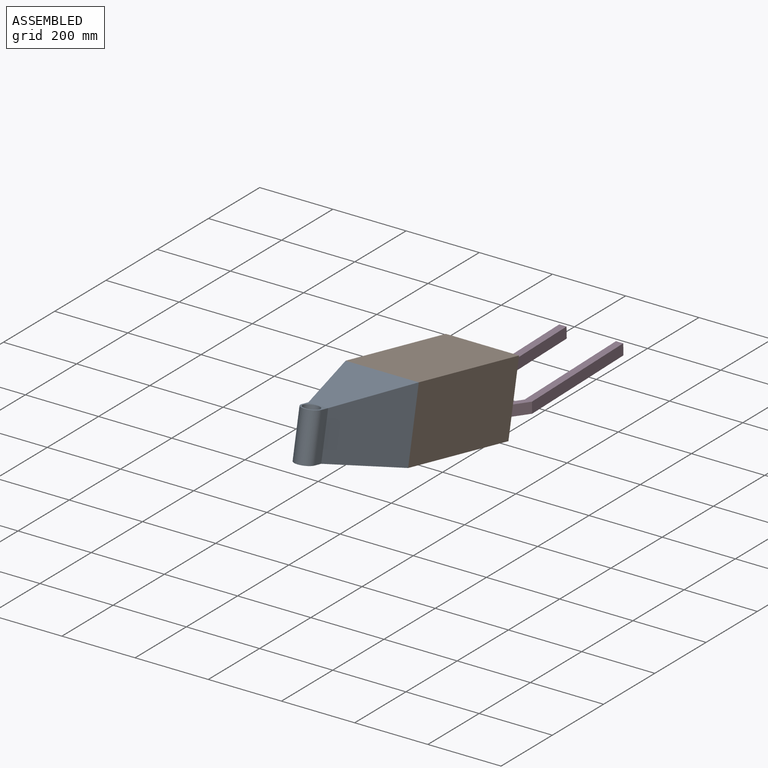
[diagram: assembled view]
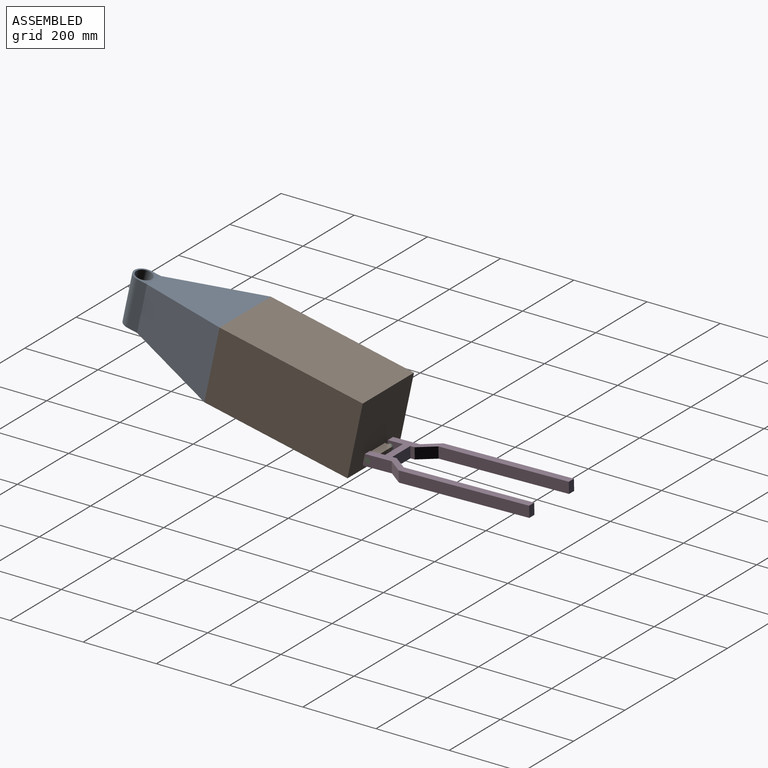
[diagram: assembled view, second angle]
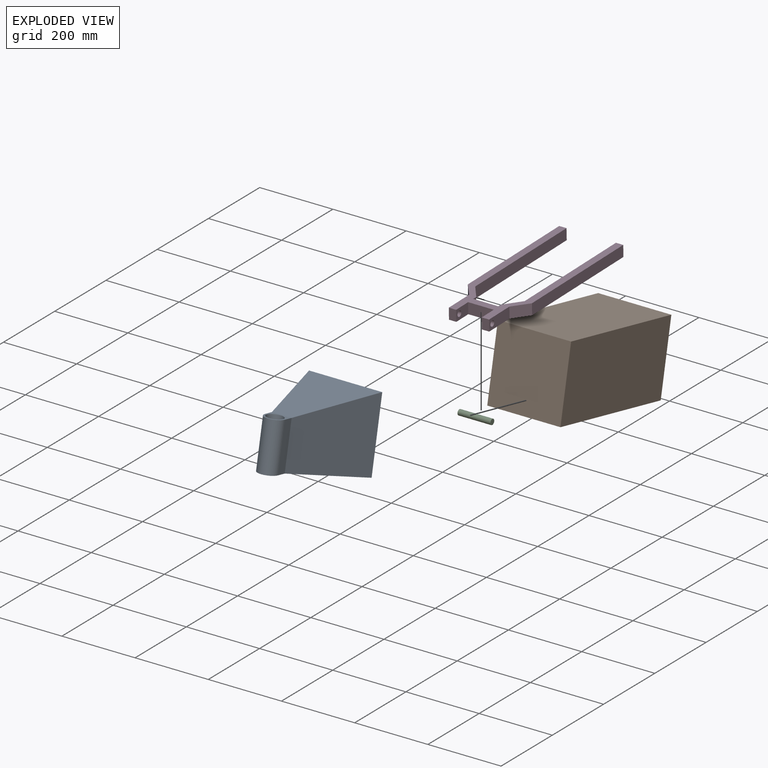
[diagram: exploded view]
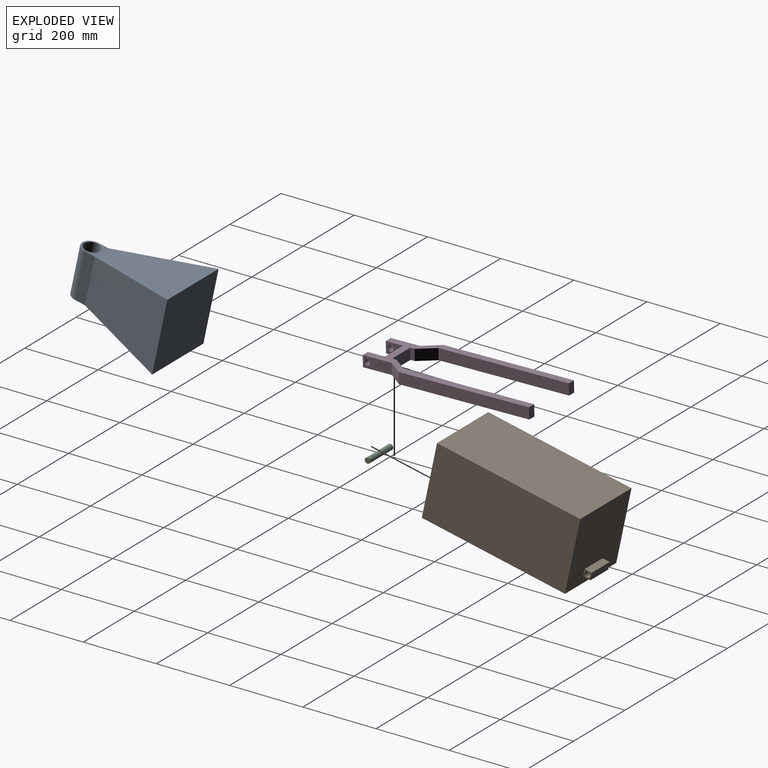
[diagram: exploded view, second angle]
ASSEMBLY  parts=4 mates=3
PART A: 11 faces, bbox 200x300.5x200 mm
  f0: cylinder r=27mm len=130mm, axis (0,0,-1), area 11027mm2, adj f1,f3,f4,f5
  f1: plane 130x27mm, normal (1,0,0), area 3510mm2, adj f0,f4,f5,f8
  f2: cylinder r=22mm len=130mm, axis (0,0,-1), area 17969.9mm2, adj f4,f5
  f3: plane 130x27mm, normal (-1,0,0), area 3510mm2, adj f0,f4,f5,f10
  f4: plane 54x54mm, normal (0,0,1), area 1082.6mm2, adj f0,f1,f2,f3,f9
  f5: plane 54x54mm, normal (0,0,-1), area 1082.6mm2, adj f0,f1,f2,f3,f7
  f6: plane 200x200mm, normal (0,1,0), area 40000mm2, adj f7,f8,f9,f10
  f7: plane 246.52x200mm, normal (0,-0.12,-0.99), area 31539.4mm2, adj f5,f6,f8,f10
  f8: plane 246.52x200mm, normal (0.96,-0.28,0), area 42422.2mm2, adj f1,f6,f7,f9
  f9: plane 246.52x200mm, normal (0,-0.16,0.99), area 31717.9mm2, adj f4,f6,f8,f10
  f10: plane 246.52x200mm, normal (-0.96,-0.28,0), area 42422.2mm2, adj f3,f6,f7,f9
PART B: 12 faces, bbox 200x420x200 mm
  f0: plane 200x200mm, normal (0,1,0), area 38600mm2, adj f1,f3,f4,f5,f6,f7,f8,f9
  f1: plane 400x200mm, normal (-1,0,0), area 80000mm2, adj f0,f2,f4,f5
  f2: plane 200x200mm, normal (0,-1,0), area 40000mm2, adj f1,f3,f4,f5
  f3: plane 400x200mm, normal (1,0,0), area 80000mm2, adj f0,f2,f4,f5
  f4: plane 400x200mm, normal (0,0,1), area 80000mm2, adj f0,f1,f2,f3
  f5: plane 400x200mm, normal (0,0,-1), area 80000mm2, adj f0,f1,f2,f3
  f6: plane 20x20mm, normal (-1,0,0), area 223.3mm2, adj f0,f7,f9,f10,f11
  f7: plane 70x20mm, normal (0,0,1), area 1400mm2, adj f0,f6,f8,f10
  f8: plane 20x20mm, normal (1,0,0), area 223.3mm2, adj f0,f7,f9,f10,f11
  f9: plane 70x20mm, normal (0,0,-1), area 1400mm2, adj f0,f6,f8,f10
  f10: plane 70x20mm, normal (0,1,0), area 1400mm2, adj f6,f7,f8,f9
  f11: cylinder r=7.5mm len=70mm, axis (1,0,0), area 3298.7mm2, adj f6,f8
PART C: 3 faces, bbox 90x15x15 mm
  f0: cylinder r=7.5mm len=90mm, axis (-1,0,0), area 4241.2mm2, adj f1,f2
  f1: plane 15x15mm, normal (1,0,0), area 176.7mm2, adj f0
  f2: plane 15x15mm, normal (-1,0,0), area 176.7mm2, adj f0
PART D: 24 faces, bbox 175x477.4x30 mm
  f0: plane 30x20mm, normal (0,1,0), area 600mm2, adj f1,f19,f20,f21
  f1: plane 356.4x30mm, normal (-1,0,0), area 10692.1mm2, adj f0,f2,f20,f21
  f2: plane 42.36x32.5mm, normal (-0.79,0.61,0), area 1601.7mm2, adj f1,f3,f20,f21
  f3: plane 30x11.79mm, normal (-1,0,0), area 353.6mm2, adj f2,f4,f20,f21
  f4: plane 70x30mm, normal (0,1,0), area 2100mm2, adj f3,f5,f20,f21
  f5: plane 30x11.79mm, normal (1,0,0), area 353.6mm2, adj f4,f6,f20,f21
  f6: plane 42.36x32.5mm, normal (0.79,0.61,0), area 1601.7mm2, adj f5,f7,f20,f21
  f7: plane 356.4x30mm, normal (1,0,0), area 10692.1mm2, adj f6,f8,f20,f21
  f8: plane 30x20mm, normal (0,1,0), area 600mm2, adj f7,f9,f20,f21
  f9: plane 356.4x30mm, normal (-1,0,0), area 10692.1mm2, adj f8,f10,f20,f21
  f10: plane 41.67x32.5mm, normal (-0.79,-0.61,0), area 1585.5mm2, adj f9,f11,f20,f21
  f11: plane 79.29x30mm, normal (-1,0,0), area 2202mm2, adj f10,f12,f20,f21,f22
  f12: plane 30x20mm, normal (0,-1,0), area 600mm2, adj f11,f13,f20,f21
  f13: plane 46.82x30mm, normal (1,0,0), area 1227.9mm2, adj f12,f14,f20,f21,f22
  f14: plane 70x30mm, normal (0,-1,0), area 2100mm2, adj f13,f15,f20,f21
  f15: plane 46.82x30mm, normal (-1,0,0), area 1227.9mm2, adj f14,f16,f20,f21,f23
  f16: plane 30x20mm, normal (0,-1,0), area 600mm2, adj f15,f17,f20,f21
  f17: plane 79.29x30mm, normal (1,0,0), area 2202mm2, adj f16,f18,f20,f21,f23
  f18: plane 41.67x32.5mm, normal (0.79,-0.61,0), area 1585.5mm2, adj f17,f19,f20,f21
  f19: plane 356.4x30mm, normal (1,0,0), area 10692.1mm2, adj f0,f18,f20,f21
  f20: plane 477.37x175mm, normal (0,0,1), area 20472.6mm2, adj f0,f1,f2,f3,f4,f5,f6,f7
  f21: plane 477.37x175mm, normal (0,0,-1), area 20472.6mm2, adj f0,f1,f2,f3,f4,f5,f6,f7
  f22: cylinder r=7.5mm len=20mm, axis (1,0,0), area 942.5mm2, adj f11,f13
  f23: cylinder r=7.5mm len=20mm, axis (-1,0,0), area 942.5mm2, adj f15,f17
PLACE A rot(axis=(-1,0,0),12deg) t=(-95.66,35.61,-57.51)mm fixed
PLACE B rot(axis=(-1,0,0),12deg) t=(-95.66,35.61,-57.51)mm
PLACE C rot(axis=(-1,0,0),4.3deg) t=(-140.66,-63.3,-66.68)mm
PLACE D rot(axis=(0,-1,-0.01),180deg) t=(-105.66,-282.92,-6.78)mm
MATE fastened A.f6 <-> B.f2  axis (0,0.98,-0.21) through (4.34,-384.6,236.28)mm
MATE revolute D.f22 <-> C.f0  axis (-1,0,0) through (-50.66,-19.03,-15.83)mm
MATE revolute C.f0 <-> B.f11  axis (-1,0,0) through (-95.66,-19.03,-15.83)mm
